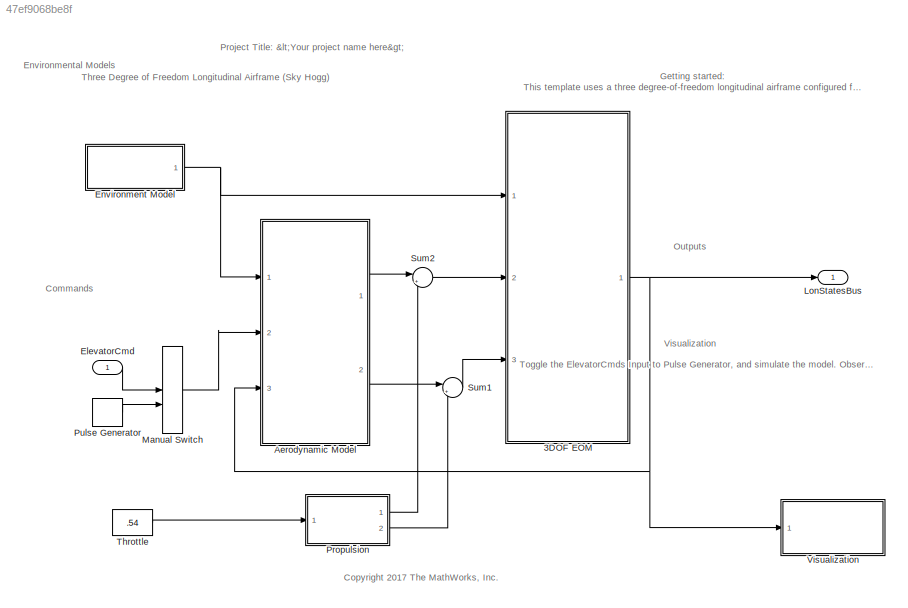
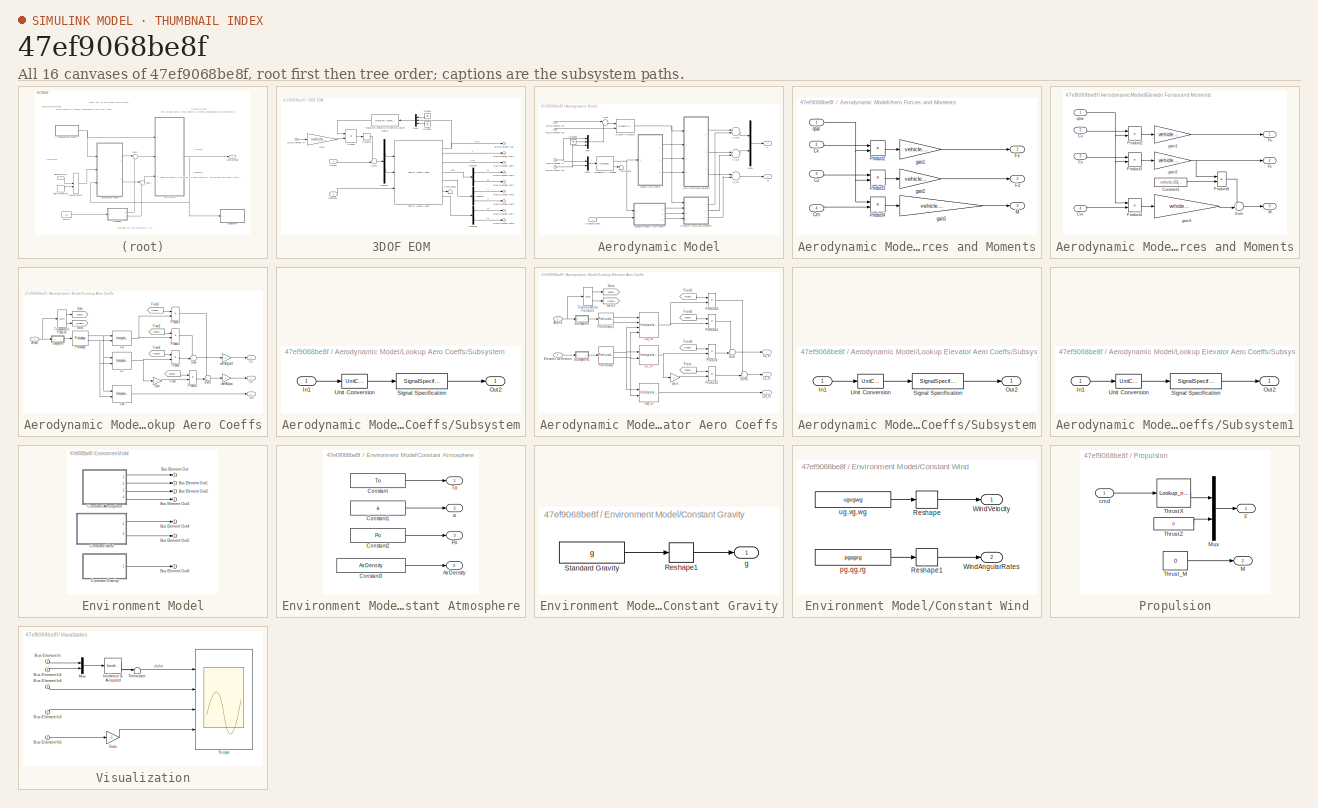
[diagram: thumbnail index - all 16 canvases of the model, root first then tree order]
MODEL slx_47ef9068be8f
KIND model
CONFIG AbsTol = auto
CONFIG EnableMultiTasking = off
CONFIG FixedStep = auto
CONFIG MaxStep = auto
CONFIG MinStep = auto
CONFIG RelTol = 1e-5
CONFIG SampleTimeConstraint = Unconstrained
CONFIG Solver = ode45
CONFIG SolverName = ode45
CONFIG StartTime = 0.0
CONFIG StopTime = 100
WORKSPACE source: MAT-file member
WORKSPACE aeroCoeff: struct (value not decoded)
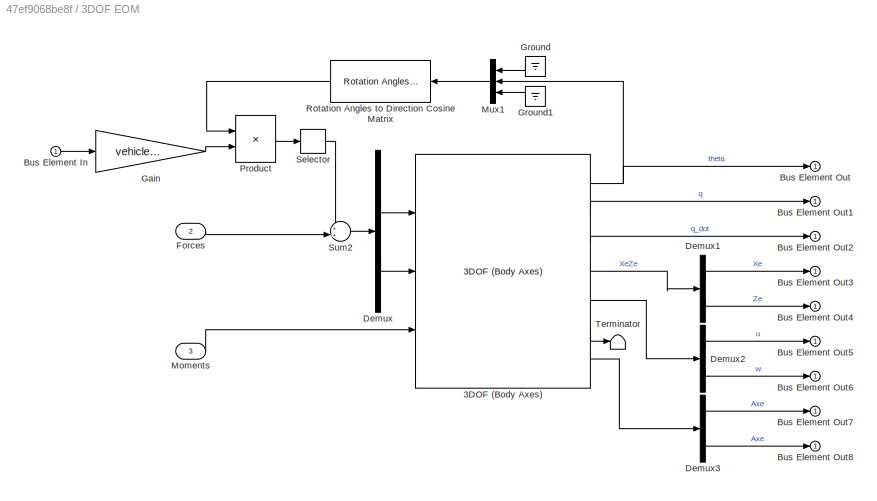
BLOCK [SubSystem] 3DOF EOM
  Ports = [3, 1]
  RequestExecContextInheritance = off
  VariantControl = eom3DOF
BLOCK [Reference] 3DOF EOM/3DOF (Body Axes)  REF=shared3dof/3DOF (Body Axes)
  Ports = [3, 7]
  SourceBlock = shared3dof/3DOF (Body Axes)
  SourceProductBaseCode = AE
  SourceProductName = Aerospace Blockset
  SourceType = 3DOF EoM
BLOCK [Inport] 3DOF EOM/Bus Element In
  IconDisplay = Port number
BLOCK [Outport] 3DOF EOM/Bus Element Out
  IconDisplay = Port number
BLOCK [Outport] 3DOF EOM/Bus Element Out1
  IconDisplay = Port number
BLOCK [Outport] 3DOF EOM/Bus Element Out2
  IconDisplay = Port number
BLOCK [Outport] 3DOF EOM/Bus Element Out3
  IconDisplay = Port number
BLOCK [Outport] 3DOF EOM/Bus Element Out4
  IconDisplay = Port number
BLOCK [Outport] 3DOF EOM/Bus Element Out5
  IconDisplay = Port number
BLOCK [Outport] 3DOF EOM/Bus Element Out6
  IconDisplay = Port number
BLOCK [Outport] 3DOF EOM/Bus Element Out7
  IconDisplay = Port number
BLOCK [Outport] 3DOF EOM/Bus Element Out8
  IconDisplay = Port number
BLOCK [Demux] 3DOF EOM/Demux
  DisplayOption = bar
  Outputs = 2
  Ports = [1, 2]
BLOCK [Demux] 3DOF EOM/Demux1
  DisplayOption = bar
  Outputs = 2
  Ports = [1, 2]
BLOCK [Demux] 3DOF EOM/Demux2
  DisplayOption = bar
  Outputs = 2
  Ports = [1, 2]
BLOCK [Demux] 3DOF EOM/Demux3
  DisplayOption = bar
  Outputs = 2
  Ports = [1, 2]
BLOCK [Inport] 3DOF EOM/Forces
  IconDisplay = Port number
  Port = 2
BLOCK [Gain] 3DOF EOM/Gain
  Gain = vehicle.acMass
  OutDataTypeStr = Inherit: Inherit via internal rule
  ParamDataTypeStr = Inherit: Inherit via internal rule
  SaturateOnIntegerOverflow = off
BLOCK [Ground] 3DOF EOM/Ground
BLOCK [Ground] 3DOF EOM/Ground1
BLOCK [Inport] 3DOF EOM/Moments
  IconDisplay = Port number
  Port = 3
BLOCK [Mux] 3DOF EOM/Mux1
  DisplayOption = bar
  Inputs = 3
  Ports = [3, 1]
BLOCK [Product] 3DOF EOM/Product
  InputSameDT = off
  Multiplication = Matrix(*)
  OutDataTypeStr = Inherit: Inherit via internal rule
  Ports = [2, 1]
  RndMeth = Floor
  SaturateOnIntegerOverflow = off
BLOCK [Reference] 3DOF EOM/Rotation Angles to Direction Cosine Matrix  REF=sharedtransform/Rotation Angles to
Direction Cosine Matrix
  AttributesFormatString = Rotation Order: %<rotationOrder>
  Ports = [1, 1]
  SourceBlock = sharedtransform/Rotation Angles to\nDirection Cosine Matrix
  SourceProductBaseCode = AE
  SourceProductName = Aerospace Blockset
  SourceType = Ang2DCM
BLOCK [Selector] 3DOF EOM/Selector
  IndexOptions = Index vector (dialog)
  Indices = [1 3]
  InputPortWidth = 3
  OutputSizes = 1
  Ports = [1, 1]
BLOCK [Sum] 3DOF EOM/Sum2
  IconShape = round
  Inputs = ++|
  Ports = [2, 1]
BLOCK [Terminator] 3DOF EOM/Terminator
BLOCK [SubSystem] Aerodynamic Model
  Ports = [3, 2]
  RequestExecContextInheritance = off
  VariantControl = aeroCONST
BLOCK [Outport] Aerodynamic Model/ M
  IconDisplay = Port number
  Port = 2
  Unit = N*m
BLOCK [Inport] Aerodynamic Model/ActuatorCmds
  IconDisplay = Port number
  Port = 2
BLOCK [SubSystem] Aerodynamic Model/Aero Forces and Moments
  Ports = [4, 3]
  RequestExecContextInheritance = off
BLOCK [Inport] Aerodynamic Model/Aero Forces and Moments/Cm
  IconDisplay = Port number
  Port = 4
BLOCK [Inport] Aerodynamic Model/Aero Forces and Moments/Cx
  IconDisplay = Port number
  Port = 2
BLOCK [Inport] Aerodynamic Model/Aero Forces and Moments/Cz
  IconDisplay = Port number
  Port = 3
BLOCK [Outport] Aerodynamic Model/Aero Forces and Moments/Fx
  IconDisplay = Port number
BLOCK [Outport] Aerodynamic Model/Aero Forces and Moments/Fz
  IconDisplay = Port number
  Port = 2
BLOCK [Outport] Aerodynamic Model/Aero Forces and Moments/M
  IconDisplay = Port number
  Port = 3
BLOCK [Product] Aerodynamic Model/Aero Forces and Moments/Product2
  Ports = [2, 1]
  RndMeth = Floor
BLOCK [Product] Aerodynamic Model/Aero Forces and Moments/Product3
  Ports = [2, 1]
  RndMeth = Floor
BLOCK [Product] Aerodynamic Model/Aero Forces and Moments/Product4
  Ports = [2, 1]
  RndMeth = Floor
BLOCK [Gain] Aerodynamic Model/Aero Forces and Moments/gain1
  Gain = vehicle.Sref
BLOCK [Gain] Aerodynamic Model/Aero Forces and Moments/gain2 
  Gain = vehicle.Sref
BLOCK [Gain] Aerodynamic Model/Aero Forces and Moments/gain3
  Gain = vehicle.Sref*vehicle.cbar
BLOCK [Inport] Aerodynamic Model/Aero Forces and Moments/qbar
  IconDisplay = Port number
BLOCK [Inport] Aerodynamic Model/Bus Element In
  IconDisplay = Port number
  Port = 3
BLOCK [Inport] Aerodynamic Model/Bus Element In1
  IconDisplay = Port number
  Port = 3
BLOCK [Inport] Aerodynamic Model/Bus Element In2
  IconDisplay = Port number
BLOCK [Inport] Aerodynamic Model/Bus Element In3
  IconDisplay = Port number
BLOCK [Reference] Aerodynamic Model/Dynamic Pressure  REF=aerolibasang/Dynamic Pressure
  Ports = [2, 1]
  SourceBlock = aerolibasang/Dynamic Pressure
  SourceProductBaseCode = AE
  SourceProductName = Aerospace Blockset
  SourceType = Dynamic Pressure
BLOCK [SubSystem] Aerodynamic Model/Elevator Forces and Moments
  Ports = [4, 3]
  RequestExecContextInheritance = off
BLOCK [Inport] Aerodynamic Model/Elevator Forces and Moments/Cm
  IconDisplay = Port number
  Port = 4
BLOCK [Constant] Aerodynamic Model/Elevator Forces and Moments/Constant1
  Value = vehicle.CG(1)
BLOCK [Inport] Aerodynamic Model/Elevator Forces and Moments/Cx
  IconDisplay = Port number
  Port = 2
BLOCK [Inport] Aerodynamic Model/Elevator Forces and Moments/Cz
  IconDisplay = Port number
  Port = 3
BLOCK [Outport] Aerodynamic Model/Elevator Forces and Moments/Fx
  IconDisplay = Port number
BLOCK [Outport] Aerodynamic Model/Elevator Forces and Moments/Fz
  IconDisplay = Port number
  Port = 2
BLOCK [Outport] Aerodynamic Model/Elevator Forces and Moments/M
  IconDisplay = Port number
  Port = 3
BLOCK [Product] Aerodynamic Model/Elevator Forces and Moments/Product2
  Ports = [2, 1]
  RndMeth = Floor
BLOCK [Product] Aerodynamic Model/Elevator Forces and Moments/Product3
  Ports = [2, 1]
  RndMeth = Floor
BLOCK [Product] Aerodynamic Model/Elevator Forces and Moments/Product4
  Ports = [2, 1]
  RndMeth = Floor
BLOCK [Product] Aerodynamic Model/Elevator Forces and Moments/Product8
  InputSameDT = off
  OutDataTypeStr = Inherit: Inherit via internal rule
  Ports = [2, 1]
  RndMeth = Floor
  SaturateOnIntegerOverflow = off
BLOCK [Sum] Aerodynamic Model/Elevator Forces and Moments/Sum
  IconShape = round
  InputSameDT = off
  Inputs = ++|
  OutDataTypeStr = Inherit: Inherit via internal rule
  Ports = [2, 1]
  SaturateOnIntegerOverflow = off
BLOCK [Gain] Aerodynamic Model/Elevator Forces and Moments/gain1
  Gain = vehicle.Sref
BLOCK [Gain] Aerodynamic Model/Elevator Forces and Moments/gain2 
  Gain = vehicle.Sref
BLOCK [Gain] Aerodynamic Model/Elevator Forces and Moments/gain3
  Gain = vehicle.Sref*vehicle.cbar
BLOCK [Inport] Aerodynamic Model/Elevator Forces and Moments/qbar
  IconDisplay = Port number
BLOCK [Outport] Aerodynamic Model/F
  IconDisplay = Port number
BLOCK [Sum] Aerodynamic Model/Fx_tot
  Ports = [2, 1]
BLOCK [Sum] Aerodynamic Model/Fz_tot
  Ports = [2, 1]
BLOCK [Ground] Aerodynamic Model/Ground3
BLOCK [Reference] Aerodynamic Model/Incidence & Airspeed  REF=aerolibasang/Incidence 
& Airspeed
  Ports = [1, 2]
  SourceBlock = aerolibasang/Incidence \n& Airspeed
  SourceProductBaseCode = AE
  SourceProductName = Aerospace Blockset
  SourceType = Incidence&Airspeed
BLOCK [SubSystem] Aerodynamic Model/Lookup Aero Coeffs
  Ports = [1, 3]
  RequestExecContextInheritance = off
BLOCK [Inport] Aerodynamic Model/Lookup Aero Coeffs/Alpha
  IconDisplay = Port number
  Unit = rad
BLOCK [Interpolation_n-D] Aerodynamic Model/Lookup Aero Coeffs/CD
  InputPortMap = u0,u1
  IntermediateResultsDataTypeStr = Inherit: Inherit via internal rule
  InternalRulePriority = Speed
  NumberOfTableDimensions = 1
  Ports = [2, 1]
  Table = aeroCoeff.CD
BLOCK [Interpolation_n-D] Aerodynamic Model/Lookup Aero Coeffs/CL
  InputPortMap = u0,u1
  IntermediateResultsDataTypeStr = Inherit: Inherit via internal rule
  InternalRulePriority = Speed
  NumberOfTableDimensions = 1
  Ports = [2, 1]
  Table = aeroCoeff.CL
BLOCK [Interpolation_n-D] Aerodynamic Model/Lookup Aero Coeffs/CM
  InputPortMap = u0,u1
  IntermediateResultsDataTypeStr = Inherit: Inherit via internal rule
  InternalRulePriority = Speed
  NumberOfTableDimensions = 1
  Ports = [2, 1]
  Table = aeroCoeff.CM
BLOCK [Outport] Aerodynamic Model/Lookup Aero Coeffs/Cm
  IconDisplay = Port number
  Port = 3
BLOCK [Outport] Aerodynamic Model/Lookup Aero Coeffs/Cx
  IconDisplay = Port number
BLOCK [Outport] Aerodynamic Model/Lookup Aero Coeffs/Cz
  IconDisplay = Port number
  Port = 2
BLOCK [From] Aerodynamic Model/Lookup Aero Coeffs/From
  GotoTag = sinalpha
BLOCK [From] Aerodynamic Model/Lookup Aero Coeffs/From2
  GotoTag = sinalpha
BLOCK [From] Aerodynamic Model/Lookup Aero Coeffs/From3
  GotoTag = cosalpha
BLOCK [From] Aerodynamic Model/Lookup Aero Coeffs/From4
  GotoTag = cosalpha
BLOCK [Gain] Aerodynamic Model/Lookup Aero Coeffs/Gain
  Gain = -1
  OutDataTypeStr = Inherit: Inherit via internal rule
  ParamDataTypeStr = Inherit: Inherit via internal rule
  SaturateOnIntegerOverflow = off
BLOCK [Goto] Aerodynamic Model/Lookup Aero Coeffs/Goto
  GotoTag = sinalpha
BLOCK [Goto] Aerodynamic Model/Lookup Aero Coeffs/Goto1
  GotoTag = cosalpha
BLOCK [PreLookup] Aerodynamic Model/Lookup Aero Coeffs/Prelookup
  BreakpointsData = aeroCoeff.alpha_vec
  ExtrapMethod = Linear
  InputPortMap = u0
  Ports = [1, 2]
BLOCK [Product] Aerodynamic Model/Lookup Aero Coeffs/Product
  InputSameDT = off
  OutDataTypeStr = Inherit: Inherit via internal rule
  Ports = [2, 1]
  RndMeth = Floor
  SaturateOnIntegerOverflow = off
BLOCK [Product] Aerodynamic Model/Lookup Aero Coeffs/Product1
  InputSameDT = off
  OutDataTypeStr = Inherit: Inherit via internal rule
  Ports = [2, 1]
  RndMeth = Floor
  SaturateOnIntegerOverflow = off
BLOCK [Product] Aerodynamic Model/Lookup Aero Coeffs/Product2
  InputSameDT = off
  OutDataTypeStr = Inherit: Inherit via internal rule
  Ports = [2, 1]
  RndMeth = Floor
  SaturateOnIntegerOverflow = off
BLOCK [Product] Aerodynamic Model/Lookup Aero Coeffs/Product3
  InputSameDT = off
  OutDataTypeStr = Inherit: Inherit via internal rule
  Ports = [2, 1]
  RndMeth = Floor
  SaturateOnIntegerOverflow = off
BLOCK [SubSystem] Aerodynamic Model/Lookup Aero Coeffs/Subsystem
  Ports = [1, 1]
  RequestExecContextInheritance = off
BLOCK [Inport] Aerodynamic Model/Lookup Aero Coeffs/Subsystem/In1
  IconDisplay = Port number
BLOCK [Outport] Aerodynamic Model/Lookup Aero Coeffs/Subsystem/Out2
  IconDisplay = Port number
BLOCK [SignalSpecification] Aerodynamic Model/Lookup Aero Coeffs/Subsystem/Signal Specification
  Unit = deg
BLOCK [UnitConversion] Aerodynamic Model/Lookup Aero Coeffs/Subsystem/Unit Conversion
BLOCK [Sum] Aerodynamic Model/Lookup Aero Coeffs/Sum
  IconShape = round
  InputSameDT = off
  Inputs = ++|
  OutDataTypeStr = Inherit: Inherit via internal rule
  Ports = [2, 1]
  SaturateOnIntegerOverflow = off
BLOCK [Sum] Aerodynamic Model/Lookup Aero Coeffs/Sum1
  IconShape = round
  InputSameDT = off
  Inputs = ++|
  OutDataTypeStr = Inherit: Inherit via internal rule
  Ports = [2, 1]
  SaturateOnIntegerOverflow = off
BLOCK [Trigonometry] Aerodynamic Model/Lookup Aero Coeffs/Trigonometric Function
  Operator = sincos
  Ports = [1, 2]
BLOCK [Gain] Aerodynamic Model/Lookup Aero Coeffs/coeffAdjust
  Gain = -1
  OutDataTypeStr = Inherit: Inherit via internal rule
  ParamDataTypeStr = Inherit: Inherit via internal rule
  SaturateOnIntegerOverflow = off
BLOCK [Gain] Aerodynamic Model/Lookup Aero Coeffs/coeffAdjust1
  Gain = -1
  OutDataTypeStr = Inherit: Inherit via internal rule
  ParamDataTypeStr = Inherit: Inherit via internal rule
  SaturateOnIntegerOverflow = off
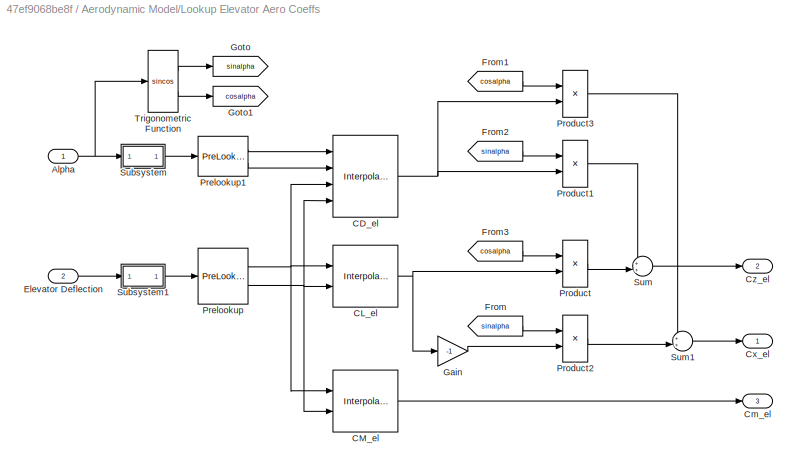
BLOCK [SubSystem] Aerodynamic Model/Lookup Elevator Aero Coeffs
  Ports = [2, 3]
  RequestExecContextInheritance = off
BLOCK [Inport] Aerodynamic Model/Lookup Elevator Aero Coeffs/Alpha
  IconDisplay = Port number
  Unit = rad
BLOCK [Interpolation_n-D] Aerodynamic Model/Lookup Elevator Aero Coeffs/CD_el
  InputPortMap = u0,u1,u2,u3
  Ports = [4, 1]
  Table = aeroCoeff.CD_el
BLOCK [Interpolation_n-D] Aerodynamic Model/Lookup Elevator Aero Coeffs/CL_el
  InputPortMap = u0,u1
  IntermediateResultsDataTypeStr = Inherit: Inherit via internal rule
  InternalRulePriority = Speed
  NumberOfTableDimensions = 1
  Ports = [2, 1]
  Table = aeroCoeff.CL_el
BLOCK [Interpolation_n-D] Aerodynamic Model/Lookup Elevator Aero Coeffs/CM_el
  InputPortMap = u0,u1
  IntermediateResultsDataTypeStr = Inherit: Inherit via internal rule
  InternalRulePriority = Speed
  NumberOfTableDimensions = 1
  Ports = [2, 1]
  Table = aeroCoeff.CM_el
BLOCK [Outport] Aerodynamic Model/Lookup Elevator Aero Coeffs/Cm_el
  IconDisplay = Port number
  Port = 3
BLOCK [Outport] Aerodynamic Model/Lookup Elevator Aero Coeffs/Cx_el
  IconDisplay = Port number
BLOCK [Outport] Aerodynamic Model/Lookup Elevator Aero Coeffs/Cz_el
  IconDisplay = Port number
  Port = 2
BLOCK [Inport] Aerodynamic Model/Lookup Elevator Aero Coeffs/Elevator Deflection
  IconDisplay = Port number
  Port = 2
  Unit = rad
BLOCK [From] Aerodynamic Model/Lookup Elevator Aero Coeffs/From
  GotoTag = sinalpha
BLOCK [From] Aerodynamic Model/Lookup Elevator Aero Coeffs/From1
  GotoTag = cosalpha
BLOCK [From] Aerodynamic Model/Lookup Elevator Aero Coeffs/From2
  GotoTag = sinalpha
BLOCK [From] Aerodynamic Model/Lookup Elevator Aero Coeffs/From3
  GotoTag = cosalpha
BLOCK [Gain] Aerodynamic Model/Lookup Elevator Aero Coeffs/Gain
  Gain = -1
  OutDataTypeStr = Inherit: Inherit via internal rule
  ParamDataTypeStr = Inherit: Inherit via internal rule
  SaturateOnIntegerOverflow = off
BLOCK [Goto] Aerodynamic Model/Lookup Elevator Aero Coeffs/Goto
  GotoTag = sinalpha
BLOCK [Goto] Aerodynamic Model/Lookup Elevator Aero Coeffs/Goto1
  GotoTag = cosalpha
BLOCK [PreLookup] Aerodynamic Model/Lookup Elevator Aero Coeffs/Prelookup
  BreakpointsData = aeroCoeff.def_vec
  ExtrapMethod = Linear
  FractionDataTypeStr = double
  IndexDataTypeStr = int32
  InputPortMap = u0
  Ports = [1, 2]
BLOCK [PreLookup] Aerodynamic Model/Lookup Elevator Aero Coeffs/Prelookup1
  BreakpointsData = aeroCoeff.alpha_vec
  ExtrapMethod = Linear
  FractionDataTypeStr = double
  IndexDataTypeStr = int32
  InputPortMap = u0
  Ports = [1, 2]
BLOCK [Product] Aerodynamic Model/Lookup Elevator Aero Coeffs/Product
  InputSameDT = off
  OutDataTypeStr = Inherit: Inherit via internal rule
  Ports = [2, 1]
  RndMeth = Floor
  SaturateOnIntegerOverflow = off
BLOCK [Product] Aerodynamic Model/Lookup Elevator Aero Coeffs/Product1
  InputSameDT = off
  OutDataTypeStr = Inherit: Inherit via internal rule
  Ports = [2, 1]
  RndMeth = Floor
  SaturateOnIntegerOverflow = off
BLOCK [Product] Aerodynamic Model/Lookup Elevator Aero Coeffs/Product2
  InputSameDT = off
  OutDataTypeStr = Inherit: Inherit via internal rule
  Ports = [2, 1]
  RndMeth = Floor
  SaturateOnIntegerOverflow = off
BLOCK [Product] Aerodynamic Model/Lookup Elevator Aero Coeffs/Product3
  InputSameDT = off
  OutDataTypeStr = Inherit: Inherit via internal rule
  Ports = [2, 1]
  RndMeth = Floor
  SaturateOnIntegerOverflow = off
BLOCK [SubSystem] Aerodynamic Model/Lookup Elevator Aero Coeffs/Subsystem
  Ports = [1, 1]
  RequestExecContextInheritance = off
BLOCK [Inport] Aerodynamic Model/Lookup Elevator Aero Coeffs/Subsystem/In1
  IconDisplay = Port number
BLOCK [Outport] Aerodynamic Model/Lookup Elevator Aero Coeffs/Subsystem/Out2
  IconDisplay = Port number
BLOCK [SignalSpecification] Aerodynamic Model/Lookup Elevator Aero Coeffs/Subsystem/Signal Specification
  Unit = deg
BLOCK [UnitConversion] Aerodynamic Model/Lookup Elevator Aero Coeffs/Subsystem/Unit Conversion
BLOCK [SubSystem] Aerodynamic Model/Lookup Elevator Aero Coeffs/Subsystem1
  Ports = [1, 1]
  RequestExecContextInheritance = off
BLOCK [Inport] Aerodynamic Model/Lookup Elevator Aero Coeffs/Subsystem1/In1
  IconDisplay = Port number
BLOCK [Outport] Aerodynamic Model/Lookup Elevator Aero Coeffs/Subsystem1/Out2
  IconDisplay = Port number
BLOCK [SignalSpecification] Aerodynamic Model/Lookup Elevator Aero Coeffs/Subsystem1/Signal Specification
  Unit = deg
BLOCK [UnitConversion] Aerodynamic Model/Lookup Elevator Aero Coeffs/Subsystem1/Unit Conversion
BLOCK [Sum] Aerodynamic Model/Lookup Elevator Aero Coeffs/Sum
  IconShape = round
  InputSameDT = off
  Inputs = ++|
  OutDataTypeStr = Inherit: Inherit via internal rule
  Ports = [2, 1]
  SaturateOnIntegerOverflow = off
BLOCK [Sum] Aerodynamic Model/Lookup Elevator Aero Coeffs/Sum1
  IconShape = round
  InputSameDT = off
  Inputs = ++|
  OutDataTypeStr = Inherit: Inherit via internal rule
  Ports = [2, 1]
  SaturateOnIntegerOverflow = off
BLOCK [Trigonometry] Aerodynamic Model/Lookup Elevator Aero Coeffs/Trigonometric Function
  Operator = sincos
  Ports = [1, 2]
BLOCK [Sum] Aerodynamic Model/M_tot
  Ports = [2, 1]
BLOCK [Mux] Aerodynamic Model/Mux
  DisplayOption = bar
  Inputs = 3
  Ports = [3, 1]
BLOCK [Mux] Aerodynamic Model/Mux2
  DisplayOption = bar
  Inputs = 2
  Ports = [2, 1]
BLOCK [Mux] Aerodynamic Model/Mux4
  DisplayOption = bar
  Inputs = 2
  Ports = [2, 1]
BLOCK [Sum] Aerodynamic Model/Sum
  IconShape = round
  InputSameDT = off
  Inputs = |-+
  OutDataTypeStr = Inherit: Inherit via internal rule
  Ports = [2, 1]
  SaturateOnIntegerOverflow = off
BLOCK [Terminator] Aerodynamic Model/Terminator
BLOCK [Inport] ElevatorCmd
  IconDisplay = Port number
BLOCK [SubSystem] Environment Model
  Ports = [0, 1]
  RequestExecContextInheritance = off
BLOCK [Outport] Environment Model/Bus Element Out
  IconDisplay = Port number
BLOCK [Outport] Environment Model/Bus Element Out1
  IconDisplay = Port number
BLOCK [Outport] Environment Model/Bus Element Out2
  IconDisplay = Port number
BLOCK [Outport] Environment Model/Bus Element Out3
  IconDisplay = Port number
BLOCK [Outport] Environment Model/Bus Element Out4
  IconDisplay = Port number
BLOCK [Outport] Environment Model/Bus Element Out5
  IconDisplay = Port number
BLOCK [Outport] Environment Model/Bus Element Out6
  IconDisplay = Port number
BLOCK [SubSystem] Environment Model/Constant Atmosphere
  Ports = [0, 4]
  RequestExecContextInheritance = off
  VariantControl = atmosCONST
BLOCK [Outport] Environment Model/Constant Atmosphere/AirDensity
  IconDisplay = Port number
  Port = 4
BLOCK [Constant] Environment Model/Constant Atmosphere/Constant
  Value = To
BLOCK [Constant] Environment Model/Constant Atmosphere/Constant1
  Value = a
BLOCK [Constant] Environment Model/Constant Atmosphere/Constant2
  Value = Po
BLOCK [Constant] Environment Model/Constant Atmosphere/Constant3
  Value = AirDensity
BLOCK [Outport] Environment Model/Constant Atmosphere/Po
  IconDisplay = Port number
  Port = 3
BLOCK [Outport] Environment Model/Constant Atmosphere/To
  IconDisplay = Port number
BLOCK [Outport] Environment Model/Constant Atmosphere/a
  IconDisplay = Port number
  Port = 2
BLOCK [SubSystem] Environment Model/Constant Gravity
  Ports = [0, 1]
  RequestExecContextInheritance = off
  VariantControl = gravCONST
BLOCK [Reshape] Environment Model/Constant Gravity/Reshape1
  OutputDimensionality = Column vector (2-D)
  Ports = [1, 1]
BLOCK [Constant] Environment Model/Constant Gravity/Standard Gravity
  Value = g
BLOCK [Outport] Environment Model/Constant Gravity/g
  IconDisplay = Port number
BLOCK [SubSystem] Environment Model/Constant Wind
  Ports = [0, 2]
  RequestExecContextInheritance = off
  VariantControl = windCONST
BLOCK [Reshape] Environment Model/Constant Wind/Reshape
  OutputDimensionality = Column vector (2-D)
  Ports = [1, 1]
BLOCK [Reshape] Environment Model/Constant Wind/Reshape1
  OutputDimensionality = Column vector (2-D)
  Ports = [1, 1]
BLOCK [Outport] Environment Model/Constant Wind/WindAngularRates
  IconDisplay = Port number
  Port = 2
BLOCK [Outport] Environment Model/Constant Wind/WindVelocity
  IconDisplay = Port number
BLOCK [Constant] Environment Model/Constant Wind/pg,qg,rg
  Value = pgqgrg
BLOCK [Constant] Environment Model/Constant Wind/ug,vg,wg
  Value = ugvgwg
BLOCK [Outport] LonStatesBus
  IconDisplay = Port number
BLOCK [ManualSwitch] Manual Switch
BLOCK [SubSystem] Propulsion
  Ports = [1, 2]
  RTWSystemCode = Inline
  RequestExecContextInheritance = off
BLOCK [Outport] Propulsion/F
  IconDisplay = Port number
  Unit = N
BLOCK [Outport] Propulsion/M
  IconDisplay = Port number
  Port = 2
  Unit = N*m
BLOCK [Mux] Propulsion/Mux
  DisplayOption = bar
  Inputs = 2
  Ports = [2, 1]
BLOCK [Lookup_n-D] Propulsion/ThrustX
  BeginIndexSearchUsingPreviousIndexResult = on
  BreakpointsForDimension1 = (1/6)*(3+([-3:3]))
  ExtrapMethod = Clip
  IndexSearchMethod = Linear search
  LookupTableObject = ''
  NumberOfTableDimensions = 1
  Ports = [1, 1]
  Table = vehicle.Thrust*(1+tanh([-3:3]))
BLOCK [Constant] Propulsion/ThrustZ
  SampleTime = -1
  Value = 0
BLOCK [Constant] Propulsion/Thrust_M
  SampleTime = -1
  Value = 0
BLOCK [Inport] Propulsion/cmd
  IconDisplay = Port number
BLOCK [DiscretePulseGenerator] Pulse Generator
  Amplitude = -2*pi/180
  Period = 500
  PhaseDelay = 10
  Ports = [0, 1]
  PulseType = Time based
  PulseWidth = .5
BLOCK [Sum] Sum1
  IconShape = round
  Inputs = |++
  Ports = [2, 1]
BLOCK [Sum] Sum2
  IconShape = round
  Inputs = |++
  Ports = [2, 1]
BLOCK [Constant] Throttle
  Value = .54
BLOCK [SubSystem] Visualization
  Ports = [1]
  RequestExecContextInheritance = off
BLOCK [Inport] Visualization/Bus Element In
  IconDisplay = Port number
BLOCK [Inport] Visualization/Bus Element In1
  IconDisplay = Port number
BLOCK [Inport] Visualization/Bus Element In3
  IconDisplay = Port number
BLOCK [Inport] Visualization/Bus Element In4
  IconDisplay = Port number
BLOCK [Inport] Visualization/Bus Element In5
  IconDisplay = Port number
BLOCK [Gain] Visualization/Gain
  Gain = -1
  OutDataTypeStr = Inherit: Inherit via internal rule
  ParamDataTypeStr = Inherit: Inherit via internal rule
  SaturateOnIntegerOverflow = off
BLOCK [Reference] Visualization/Incidence & Airspeed  REF=aerolibasang/Incidence 
& Airspeed
  Ports = [1, 2]
  SourceBlock = aerolibasang/Incidence \n& Airspeed
  SourceProductBaseCode = AE
  SourceProductName = Aerospace Blockset
  SourceType = Incidence&Airspeed
BLOCK [Mux] Visualization/Mux
  DisplayOption = bar
  Inputs = 2
  Ports = [2, 1]
BLOCK [Scope] Visualization/Scope
  Floating = off
  NumInputPorts = 4
  Ports = [4]
  ScopeSpecificationString = Simulink.scopes.TimeScopeBlockCfg('CurrentConfiguration', extmgr.ConfigurationSet(extmgr.Configuration('Core','General UI',true),extmgr.Configuration('Core','Source UI',true),extmgr.Configuration('Sources','WiredSimulink',true,'DataLoggingVariableName','ScopeData2'),extmgr.Configuration('Visuals','Time Domain',true,'SerializedDisplays',{struct('MinYLimReal','0.01492','MaxYLimReal','0.01759','YLabe...<+3493ch>
BLOCK [Terminator] Visualization/Terminator
ANNOTATION (root): Toggle the ElevatorCmds Input to Pulse Generator, and simulate the model. Observe the short-period response and long-period (phugoid) response of the system in the Angle-of-Attack vs Time plot within. Note the high frequency oscillatory behavior immediately after the deflection, and the low frequency behavior later in the run.
ANNOTATION (root): Getting started: This template uses a three degree-of-freedom longitudinal airframe configured for linearization and handling quality analysis using Simulink Control Design. The Sky Hogg airframe parameters are used to initialize this template.
ANNOTATION (root): Project Title: <Your project name here>
ANNOTATION (root): Commands
ANNOTATION (root): <copyright redacted>
ANNOTATION (root): Environmental Models
ANNOTATION (root): Outputs
ANNOTATION (root): Three Degree of Freedom Longitudinal Airframe (Sky Hogg)
ANNOTATION (root): Visualization
NET 3DOF EOM/3DOF (Body Axes):1 -> 3DOF EOM/Bus Element Out:1, 3DOF EOM/Mux1:2
LINE 3DOF EOM/3DOF (Body Axes):2 -> 3DOF EOM/Bus Element Out1:1
LINE 3DOF EOM/3DOF (Body Axes):3 -> 3DOF EOM/Bus Element Out2:1
LINE 3DOF EOM/3DOF (Body Axes):4 -> 3DOF EOM/Demux1:1
LINE 3DOF EOM/3DOF (Body Axes):5 -> 3DOF EOM/Demux2:1
LINE 3DOF EOM/3DOF (Body Axes):6 -> 3DOF EOM/Terminator:1
LINE 3DOF EOM/3DOF (Body Axes):7 -> 3DOF EOM/Demux3:1
LINE 3DOF EOM/Bus Element In:1 -> 3DOF EOM/Gain:1
LINE 3DOF EOM/Demux1:1 -> 3DOF EOM/Bus Element Out3:1
LINE 3DOF EOM/Demux1:2 -> 3DOF EOM/Bus Element Out4:1
LINE 3DOF EOM/Demux2:1 -> 3DOF EOM/Bus Element Out5:1
LINE 3DOF EOM/Demux2:2 -> 3DOF EOM/Bus Element Out6:1
LINE 3DOF EOM/Demux3:1 -> 3DOF EOM/Bus Element Out7:1
LINE 3DOF EOM/Demux3:2 -> 3DOF EOM/Bus Element Out8:1
LINE 3DOF EOM/Demux:1 -> 3DOF EOM/3DOF (Body Axes):1
LINE 3DOF EOM/Demux:2 -> 3DOF EOM/3DOF (Body Axes):2
LINE 3DOF EOM/Forces:1 -> 3DOF EOM/Sum2:2
LINE 3DOF EOM/Gain:1 -> 3DOF EOM/Product:2
LINE 3DOF EOM/Ground1:1 -> 3DOF EOM/Mux1:3
LINE 3DOF EOM/Ground:1 -> 3DOF EOM/Mux1:1
LINE 3DOF EOM/Moments:1 -> 3DOF EOM/3DOF (Body Axes):3
LINE 3DOF EOM/Mux1:1 -> 3DOF EOM/Rotation Angles to Direction Cosine Matrix:1
LINE 3DOF EOM/Product:1 -> 3DOF EOM/Selector:1
LINE 3DOF EOM/Rotation Angles to Direction Cosine Matrix:1 -> 3DOF EOM/Product:1
LINE 3DOF EOM/Selector:1 -> 3DOF EOM/Sum2:1
LINE 3DOF EOM/Sum2:1 -> 3DOF EOM/Demux:1
NET 3DOF EOM:1 -> Aerodynamic Model:3, LonStatesBus:1, Visualization:1
LINE Aerodynamic Model/ActuatorCmds:1 -> Aerodynamic Model/Lookup Elevator Aero Coeffs:2
LINE Aerodynamic Model/Aero Forces and Moments/Cm:1 -> Aerodynamic Model/Aero Forces and Moments/Product4:2
LINE Aerodynamic Model/Aero Forces and Moments/Cx:1 -> Aerodynamic Model/Aero Forces and Moments/Product2:1
LINE Aerodynamic Model/Aero Forces and Moments/Cz:1 -> Aerodynamic Model/Aero Forces and Moments/Product3:1
LINE Aerodynamic Model/Aero Forces and Moments/Product2:1 -> Aerodynamic Model/Aero Forces and Moments/gain1:1
LINE Aerodynamic Model/Aero Forces and Moments/Product3:1 -> Aerodynamic Model/Aero Forces and Moments/gain2 :1
LINE Aerodynamic Model/Aero Forces and Moments/Product4:1 -> Aerodynamic Model/Aero Forces and Moments/gain3:1
LINE Aerodynamic Model/Aero Forces and Moments/gain1:1 -> Aerodynamic Model/Aero Forces and Moments/Fx:1
LINE Aerodynamic Model/Aero Forces and Moments/gain2 :1 -> Aerodynamic Model/Aero Forces and Moments/Fz:1
LINE Aerodynamic Model/Aero Forces and Moments/gain3:1 -> Aerodynamic Model/Aero Forces and Moments/M:1
NET Aerodynamic Model/Aero Forces and Moments/qbar:1 -> Aerodynamic Model/Aero Forces and Moments/Product2:2, Aerodynamic Model/Aero Forces and Moments/Product3:2, Aerodynamic Model/Aero Forces and Moments/Product4:1
LINE Aerodynamic Model/Aero Forces and Moments:1 -> Aerodynamic Model/Fx_tot:1
LINE Aerodynamic Model/Aero Forces and Moments:2 -> Aerodynamic Model/Fz_tot:1
LINE Aerodynamic Model/Aero Forces and Moments:3 -> Aerodynamic Model/M_tot:1
NET Aerodynamic Model/Bus Element In1:1 -> Aerodynamic Model/Mux4:2, Aerodynamic Model/Mux:3
LINE Aerodynamic Model/Bus Element In2:1 -> Aerodynamic Model/Sum:1
LINE Aerodynamic Model/Bus Element In3:1 -> Aerodynamic Model/Dynamic Pressure:2
NET Aerodynamic Model/Bus Element In:1 -> Aerodynamic Model/Mux4:1, Aerodynamic Model/Mux:1
NET Aerodynamic Model/Dynamic Pressure:1 -> Aerodynamic Model/Aero Forces and Moments:1, Aerodynamic Model/Elevator Forces and Moments:1
LINE Aerodynamic Model/Elevator Forces and Moments/Cm:1 -> Aerodynamic Model/Elevator Forces and Moments/Product4:2
LINE Aerodynamic Model/Elevator Forces and Moments/Constant1:1 -> Aerodynamic Model/Elevator Forces and Moments/Product8:2
LINE Aerodynamic Model/Elevator Forces and Moments/Cx:1 -> Aerodynamic Model/Elevator Forces and Moments/Product2:1
LINE Aerodynamic Model/Elevator Forces and Moments/Cz:1 -> Aerodynamic Model/Elevator Forces and Moments/Product3:1
LINE Aerodynamic Model/Elevator Forces and Moments/Product2:1 -> Aerodynamic Model/Elevator Forces and Moments/gain1:1
LINE Aerodynamic Model/Elevator Forces and Moments/Product3:1 -> Aerodynamic Model/Elevator Forces and Moments/gain2 :1
LINE Aerodynamic Model/Elevator Forces and Moments/Product4:1 -> Aerodynamic Model/Elevator Forces and Moments/gain3:1
LINE Aerodynamic Model/Elevator Forces and Moments/Product8:1 -> Aerodynamic Model/Elevator Forces and Moments/Sum:1
LINE Aerodynamic Model/Elevator Forces and Moments/Sum:1 -> Aerodynamic Model/Elevator Forces and Moments/M:1
LINE Aerodynamic Model/Elevator Forces and Moments/gain1:1 -> Aerodynamic Model/Elevator Forces and Moments/Fx:1
NET Aerodynamic Model/Elevator Forces and Moments/gain2 :1 -> Aerodynamic Model/Elevator Forces and Moments/Fz:1, Aerodynamic Model/Elevator Forces and Moments/Product8:1
LINE Aerodynamic Model/Elevator Forces and Moments/gain3:1 -> Aerodynamic Model/Elevator Forces and Moments/Sum:2
NET Aerodynamic Model/Elevator Forces and Moments/qbar:1 -> Aerodynamic Model/Elevator Forces and Moments/Product2:2, Aerodynamic Model/Elevator Forces and Moments/Product3:2, Aerodynamic Model/Elevator Forces and Moments/Product4:1
LINE Aerodynamic Model/Elevator Forces and Moments:1 -> Aerodynamic Model/Fx_tot:2
LINE Aerodynamic Model/Elevator Forces and Moments:2 -> Aerodynamic Model/Fz_tot:2
LINE Aerodynamic Model/Elevator Forces and Moments:3 -> Aerodynamic Model/M_tot:2
LINE Aerodynamic Model/Fx_tot:1 -> Aerodynamic Model/Mux2:1
LINE Aerodynamic Model/Fz_tot:1 -> Aerodynamic Model/Mux2:2
LINE Aerodynamic Model/Ground3:1 -> Aerodynamic Model/Mux:2
NET Aerodynamic Model/Incidence & Airspeed:1 -> Aerodynamic Model/Lookup Aero Coeffs:1, Aerodynamic Model/Lookup Elevator Aero Coeffs:1
LINE Aerodynamic Model/Incidence & Airspeed:2 -> Aerodynamic Model/Terminator:1
NET Aerodynamic Model/Lookup Aero Coeffs/Alpha:1 -> Aerodynamic Model/Lookup Aero Coeffs/Subsystem:1, Aerodynamic Model/Lookup Aero Coeffs/Trigonometric Function:1
NET Aerodynamic Model/Lookup Aero Coeffs/CD:1 -> Aerodynamic Model/Lookup Aero Coeffs/Product1:2, Aerodynamic Model/Lookup Aero Coeffs/Product3:2
NET Aerodynamic Model/Lookup Aero Coeffs/CL:1 -> Aerodynamic Model/Lookup Aero Coeffs/Gain:1, Aerodynamic Model/Lookup Aero Coeffs/Product:2
LINE Aerodynamic Model/Lookup Aero Coeffs/CM:1 -> Aerodynamic Model/Lookup Aero Coeffs/Cm:1
LINE Aerodynamic Model/Lookup Aero Coeffs/From2:1 -> Aerodynamic Model/Lookup Aero Coeffs/Product1:1
LINE Aerodynamic Model/Lookup Aero Coeffs/From3:1 -> Aerodynamic Model/Lookup Aero Coeffs/Product3:1
LINE Aerodynamic Model/Lookup Aero Coeffs/From4:1 -> Aerodynamic Model/Lookup Aero Coeffs/Product:1
LINE Aerodynamic Model/Lookup Aero Coeffs/From:1 -> Aerodynamic Model/Lookup Aero Coeffs/Product2:1
LINE Aerodynamic Model/Lookup Aero Coeffs/Gain:1 -> Aerodynamic Model/Lookup Aero Coeffs/Product2:2
NET Aerodynamic Model/Lookup Aero Coeffs/Prelookup:1 -> Aerodynamic Model/Lookup Aero Coeffs/CD:1, Aerodynamic Model/Lookup Aero Coeffs/CL:1, Aerodynamic Model/Lookup Aero Coeffs/CM:1
NET Aerodynamic Model/Lookup Aero Coeffs/Prelookup:2 -> Aerodynamic Model/Lookup Aero Coeffs/CD:2, Aerodynamic Model/Lookup Aero Coeffs/CL:2, Aerodynamic Model/Lookup Aero Coeffs/CM:2
LINE Aerodynamic Model/Lookup Aero Coeffs/Product1:1 -> Aerodynamic Model/Lookup Aero Coeffs/Sum:1
LINE Aerodynamic Model/Lookup Aero Coeffs/Product2:1 -> Aerodynamic Model/Lookup Aero Coeffs/Sum1:2
LINE Aerodynamic Model/Lookup Aero Coeffs/Product3:1 -> Aerodynamic Model/Lookup Aero Coeffs/Sum1:1
LINE Aerodynamic Model/Lookup Aero Coeffs/Product:1 -> Aerodynamic Model/Lookup Aero Coeffs/Sum:2
LINE Aerodynamic Model/Lookup Aero Coeffs/Subsystem/In1:1 -> Aerodynamic Model/Lookup Aero Coeffs/Subsystem/Unit Conversion:1
LINE Aerodynamic Model/Lookup Aero Coeffs/Subsystem/Signal Specification:1 -> Aerodynamic Model/Lookup Aero Coeffs/Subsystem/Out2:1
LINE Aerodynamic Model/Lookup Aero Coeffs/Subsystem/Unit Conversion:1 -> Aerodynamic Model/Lookup Aero Coeffs/Subsystem/Signal Specification:1
LINE Aerodynamic Model/Lookup Aero Coeffs/Subsystem:1 -> Aerodynamic Model/Lookup Aero Coeffs/Prelookup:1
LINE Aerodynamic Model/Lookup Aero Coeffs/Sum1:1 -> Aerodynamic Model/Lookup Aero Coeffs/coeffAdjust:1
LINE Aerodynamic Model/Lookup Aero Coeffs/Sum:1 -> Aerodynamic Model/Lookup Aero Coeffs/coeffAdjust1:1
LINE Aerodynamic Model/Lookup Aero Coeffs/Trigonometric Function:1 -> Aerodynamic Model/Lookup Aero Coeffs/Goto:1
LINE Aerodynamic Model/Lookup Aero Coeffs/Trigonometric Function:2 -> Aerodynamic Model/Lookup Aero Coeffs/Goto1:1
LINE Aerodynamic Model/Lookup Aero Coeffs/coeffAdjust1:1 -> Aerodynamic Model/Lookup Aero Coeffs/Cz:1
LINE Aerodynamic Model/Lookup Aero Coeffs/coeffAdjust:1 -> Aerodynamic Model/Lookup Aero Coeffs/Cx:1
LINE Aerodynamic Model/Lookup Aero Coeffs:1 -> Aerodynamic Model/Aero Forces and Moments:2
LINE Aerodynamic Model/Lookup Aero Coeffs:2 -> Aerodynamic Model/Aero Forces and Moments:3
LINE Aerodynamic Model/Lookup Aero Coeffs:3 -> Aerodynamic Model/Aero Forces and Moments:4
NET Aerodynamic Model/Lookup Elevator Aero Coeffs/Alpha:1 -> Aerodynamic Model/Lookup Elevator Aero Coeffs/Subsystem:1, Aerodynamic Model/Lookup Elevator Aero Coeffs/Trigonometric Function:1
NET Aerodynamic Model/Lookup Elevator Aero Coeffs/CD_el:1 -> Aerodynamic Model/Lookup Elevator Aero Coeffs/Product1:2, Aerodynamic Model/Lookup Elevator Aero Coeffs/Product3:2
NET Aerodynamic Model/Lookup Elevator Aero Coeffs/CL_el:1 -> Aerodynamic Model/Lookup Elevator Aero Coeffs/Gain:1, Aerodynamic Model/Lookup Elevator Aero Coeffs/Product:2
LINE Aerodynamic Model/Lookup Elevator Aero Coeffs/CM_el:1 -> Aerodynamic Model/Lookup Elevator Aero Coeffs/Cm_el:1
LINE Aerodynamic Model/Lookup Elevator Aero Coeffs/Elevator Deflection:1 -> Aerodynamic Model/Lookup Elevator Aero Coeffs/Subsystem1:1
LINE Aerodynamic Model/Lookup Elevator Aero Coeffs/From1:1 -> Aerodynamic Model/Lookup Elevator Aero Coeffs/Product3:1
LINE Aerodynamic Model/Lookup Elevator Aero Coeffs/From2:1 -> Aerodynamic Model/Lookup Elevator Aero Coeffs/Product1:1
LINE Aerodynamic Model/Lookup Elevator Aero Coeffs/From3:1 -> Aerodynamic Model/Lookup Elevator Aero Coeffs/Product:1
LINE Aerodynamic Model/Lookup Elevator Aero Coeffs/From:1 -> Aerodynamic Model/Lookup Elevator Aero Coeffs/Product2:1
LINE Aerodynamic Model/Lookup Elevator Aero Coeffs/Gain:1 -> Aerodynamic Model/Lookup Elevator Aero Coeffs/Product2:2
LINE Aerodynamic Model/Lookup Elevator Aero Coeffs/Prelookup1:1 -> Aerodynamic Model/Lookup Elevator Aero Coeffs/CD_el:1
LINE Aerodynamic Model/Lookup Elevator Aero Coeffs/Prelookup1:2 -> Aerodynamic Model/Lookup Elevator Aero Coeffs/CD_el:2
NET Aerodynamic Model/Lookup Elevator Aero Coeffs/Prelookup:1 -> Aerodynamic Model/Lookup Elevator Aero Coeffs/CD_el:3, Aerodynamic Model/Lookup Elevator Aero Coeffs/CL_el:1, Aerodynamic Model/Lookup Elevator Aero Coeffs/CM_el:1
NET Aerodynamic Model/Lookup Elevator Aero Coeffs/Prelookup:2 -> Aerodynamic Model/Lookup Elevator Aero Coeffs/CD_el:4, Aerodynamic Model/Lookup Elevator Aero Coeffs/CL_el:2, Aerodynamic Model/Lookup Elevator Aero Coeffs/CM_el:2
LINE Aerodynamic Model/Lookup Elevator Aero Coeffs/Product1:1 -> Aerodynamic Model/Lookup Elevator Aero Coeffs/Sum:1
LINE Aerodynamic Model/Lookup Elevator Aero Coeffs/Product2:1 -> Aerodynamic Model/Lookup Elevator Aero Coeffs/Sum1:2
LINE Aerodynamic Model/Lookup Elevator Aero Coeffs/Product3:1 -> Aerodynamic Model/Lookup Elevator Aero Coeffs/Sum1:1
LINE Aerodynamic Model/Lookup Elevator Aero Coeffs/Product:1 -> Aerodynamic Model/Lookup Elevator Aero Coeffs/Sum:2
LINE Aerodynamic Model/Lookup Elevator Aero Coeffs/Subsystem/In1:1 -> Aerodynamic Model/Lookup Elevator Aero Coeffs/Subsystem/Unit Conversion:1
LINE Aerodynamic Model/Lookup Elevator Aero Coeffs/Subsystem/Signal Specification:1 -> Aerodynamic Model/Lookup Elevator Aero Coeffs/Subsystem/Out2:1
LINE Aerodynamic Model/Lookup Elevator Aero Coeffs/Subsystem/Unit Conversion:1 -> Aerodynamic Model/Lookup Elevator Aero Coeffs/Subsystem/Signal Specification:1
LINE Aerodynamic Model/Lookup Elevator Aero Coeffs/Subsystem1/In1:1 -> Aerodynamic Model/Lookup Elevator Aero Coeffs/Subsystem1/Unit Conversion:1
LINE Aerodynamic Model/Lookup Elevator Aero Coeffs/Subsystem1/Signal Specification:1 -> Aerodynamic Model/Lookup Elevator Aero Coeffs/Subsystem1/Out2:1
LINE Aerodynamic Model/Lookup Elevator Aero Coeffs/Subsystem1/Unit Conversion:1 -> Aerodynamic Model/Lookup Elevator Aero Coeffs/Subsystem1/Signal Specification:1
LINE Aerodynamic Model/Lookup Elevator Aero Coeffs/Subsystem1:1 -> Aerodynamic Model/Lookup Elevator Aero Coeffs/Prelookup:1
LINE Aerodynamic Model/Lookup Elevator Aero Coeffs/Subsystem:1 -> Aerodynamic Model/Lookup Elevator Aero Coeffs/Prelookup1:1
LINE Aerodynamic Model/Lookup Elevator Aero Coeffs/Sum1:1 -> Aerodynamic Model/Lookup Elevator Aero Coeffs/Cx_el:1
LINE Aerodynamic Model/Lookup Elevator Aero Coeffs/Sum:1 -> Aerodynamic Model/Lookup Elevator Aero Coeffs/Cz_el:1
LINE Aerodynamic Model/Lookup Elevator Aero Coeffs/Trigonometric Function:1 -> Aerodynamic Model/Lookup Elevator Aero Coeffs/Goto:1
LINE Aerodynamic Model/Lookup Elevator Aero Coeffs/Trigonometric Function:2 -> Aerodynamic Model/Lookup Elevator Aero Coeffs/Goto1:1
LINE Aerodynamic Model/Lookup Elevator Aero Coeffs:1 -> Aerodynamic Model/Elevator Forces and Moments:2
LINE Aerodynamic Model/Lookup Elevator Aero Coeffs:2 -> Aerodynamic Model/Elevator Forces and Moments:3
LINE Aerodynamic Model/Lookup Elevator Aero Coeffs:3 -> Aerodynamic Model/Elevator Forces and Moments:4
LINE Aerodynamic Model/M_tot:1 -> Aerodynamic Model/ M:1
LINE Aerodynamic Model/Mux2:1 -> Aerodynamic Model/F:1
LINE Aerodynamic Model/Mux4:1 -> Aerodynamic Model/Incidence & Airspeed:1
LINE Aerodynamic Model/Mux:1 -> Aerodynamic Model/Sum:2
LINE Aerodynamic Model/Sum:1 -> Aerodynamic Model/Dynamic Pressure:1
LINE Aerodynamic Model:1 -> Sum2:1
LINE Aerodynamic Model:2 -> Sum1:1
LINE ElevatorCmd:1 -> Manual Switch:1
LINE Environment Model/Constant Atmosphere/Constant1:1 -> Environment Model/Constant Atmosphere/a:1
LINE Environment Model/Constant Atmosphere/Constant2:1 -> Environment Model/Constant Atmosphere/Po:1
LINE Environment Model/Constant Atmosphere/Constant3:1 -> Environment Model/Constant Atmosphere/AirDensity:1
LINE Environment Model/Constant Atmosphere/Constant:1 -> Environment Model/Constant Atmosphere/To:1
LINE Environment Model/Constant Atmosphere:1 -> Environment Model/Bus Element Out:1
LINE Environment Model/Constant Atmosphere:2 -> Environment Model/Bus Element Out1:1
LINE Environment Model/Constant Atmosphere:3 -> Environment Model/Bus Element Out2:1
LINE Environment Model/Constant Atmosphere:4 -> Environment Model/Bus Element Out3:1
LINE Environment Model/Constant Gravity/Reshape1:1 -> Environment Model/Constant Gravity/g:1
LINE Environment Model/Constant Gravity/Standard Gravity:1 -> Environment Model/Constant Gravity/Reshape1:1
LINE Environment Model/Constant Gravity:1 -> Environment Model/Bus Element Out6:1
LINE Environment Model/Constant Wind/Reshape1:1 -> Environment Model/Constant Wind/WindAngularRates:1
LINE Environment Model/Constant Wind/Reshape:1 -> Environment Model/Constant Wind/WindVelocity:1
LINE Environment Model/Constant Wind/pg,qg,rg:1 -> Environment Model/Constant Wind/Reshape1:1
LINE Environment Model/Constant Wind/ug,vg,wg:1 -> Environment Model/Constant Wind/Reshape:1
LINE Environment Model/Constant Wind:1 -> Environment Model/Bus Element Out4:1
LINE Environment Model/Constant Wind:2 -> Environment Model/Bus Element Out5:1
NET Environment Model:1 -> 3DOF EOM:1, Aerodynamic Model:1
LINE Manual Switch:1 -> Aerodynamic Model:2
LINE Propulsion/Mux:1 -> Propulsion/F:1
LINE Propulsion/ThrustX:1 -> Propulsion/Mux:1
LINE Propulsion/ThrustZ:1 -> Propulsion/Mux:2
LINE Propulsion/Thrust_M:1 -> Propulsion/M:1
LINE Propulsion/cmd:1 -> Propulsion/ThrustX:1
LINE Propulsion:1 -> Sum2:2
LINE Propulsion:2 -> Sum1:2
LINE Pulse Generator:1 -> Manual Switch:2
LINE Sum1:1 -> 3DOF EOM:3
LINE Sum2:1 -> 3DOF EOM:2
LINE Throttle:1 -> Propulsion:1
LINE Visualization/Bus Element In1:1 -> Visualization/Mux:2
LINE Visualization/Bus Element In3:1 -> Visualization/Scope:3
LINE Visualization/Bus Element In4:1 -> Visualization/Scope:2
LINE Visualization/Bus Element In5:1 -> Visualization/Gain:1
LINE Visualization/Bus Element In:1 -> Visualization/Mux:1
LINE Visualization/Gain:1 -> Visualization/Scope:4
LINE Visualization/Incidence & Airspeed:1 -> Visualization/Scope:1
LINE Visualization/Incidence & Airspeed:2 -> Visualization/Terminator:1
LINE Visualization/Mux:1 -> Visualization/Incidence & Airspeed:1
note: NET lines group one-source signal fan-out (src -> all destinations, sorted); 1:1 wires keep LINE
